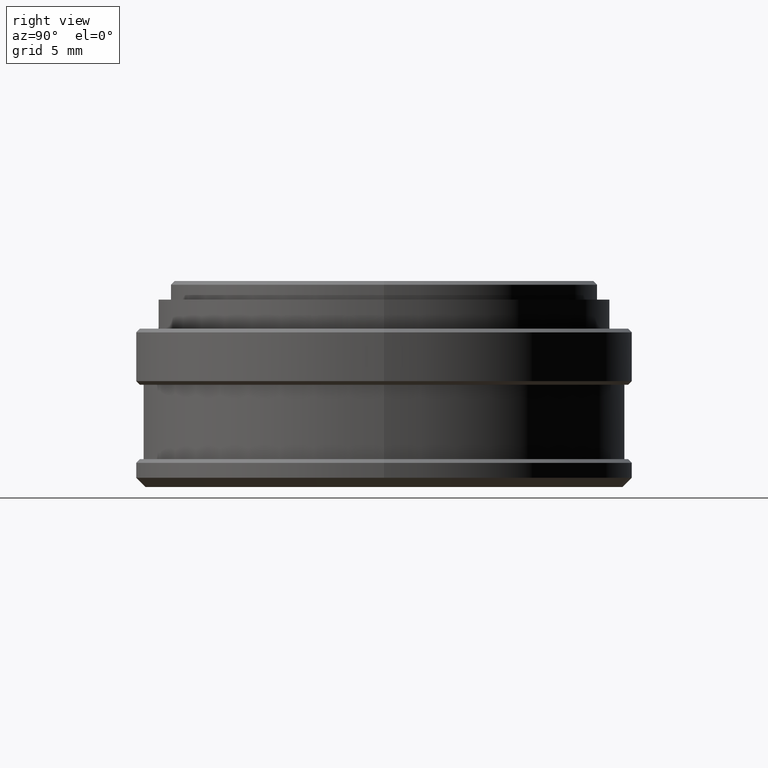
[diagram: clean part render]
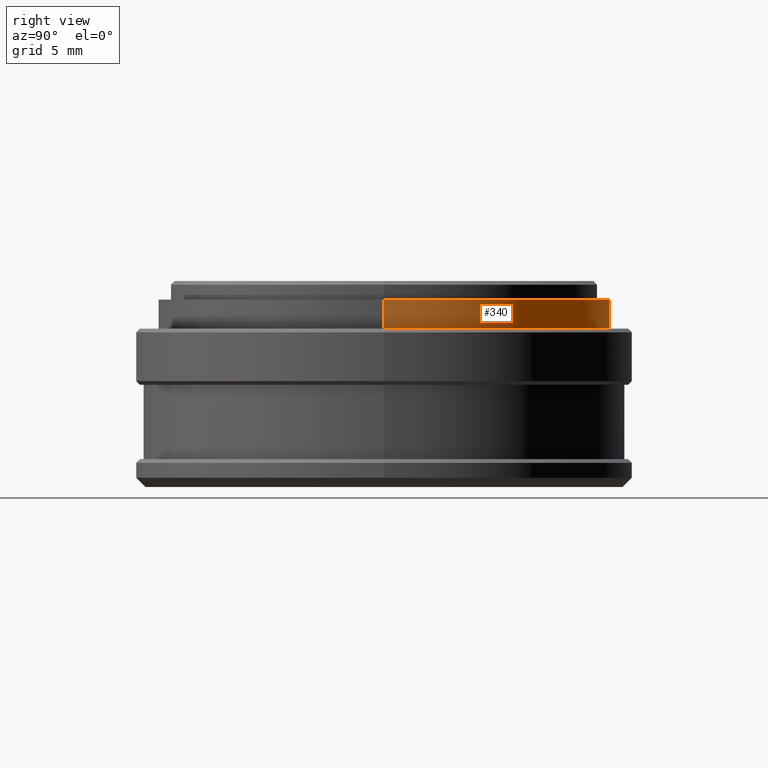
[diagram: same view with one face highlighted and labeled with its STEP entity id]
A machine part, right view. The second image highlights one B-rep face of the part: STEP entity #340.
In plain terms, the highlighted cylindrical surface (partial cylindrical patch) has radius 12.124 mm, axis along (-0, -0, -1).
Its self-contained STEP definition (entity closure, byte-faithful):
#20 = ORIENTED_EDGE ( 'NONE', *, *, #229, .F. ) ;
#27 = ORIENTED_EDGE ( 'NONE', *, *, #315, .F. ) ;
#148 = VERTEX_POINT ( 'NONE', #280 ) ;
#151 = CYLINDRICAL_SURFACE ( 'NONE', #524, 12.12400000000000200 ) ;
#207 = EDGE_LOOP ( 'NONE', ( #20, #306, #375, #27 ) ) ;
#220 = LINE ( 'NONE', #709, #260 ) ;
#229 = EDGE_CURVE ( 'NONE', #643, #623, #736, .T. ) ;
#233 = CIRCLE ( 'NONE', #475, 12.12400000000000200 ) ;
#260 = VECTOR ( 'NONE', #748, 1000.000000000000000 ) ;
#271 = EDGE_CURVE ( 'NONE', #313, #148, #233, .T. ) ;
#280 = CARTESIAN_POINT ( 'NONE',  ( -12.12400000000000200, 0.0000000000000000000, 8.519999999999999600 ) ) ;
#304 = EDGE_CURVE ( 'NONE', #643, #313, #316, .T. ) ;
#306 = ORIENTED_EDGE ( 'NONE', *, *, #304, .T. ) ;
#313 = VERTEX_POINT ( 'NONE', #679 ) ;
#315 = EDGE_CURVE ( 'NONE', #623, #148, #220, .T. ) ;
#316 = LINE ( 'NONE', #703, #388 ) ;
#340 = ADVANCED_FACE ( 'NONE', ( #722 ), #151, .T. ) ;
#375 = ORIENTED_EDGE ( 'NONE', *, *, #271, .T. ) ;
#388 = VECTOR ( 'NONE', #705, 1000.000000000000000 ) ;
#475 = AXIS2_PLACEMENT_3D ( 'NONE', #624, #629, #654 ) ;
#492 = AXIS2_PLACEMENT_3D ( 'NONE', #532, #554, #548 ) ;
#522 = CARTESIAN_POINT ( 'NONE',  ( 12.12400000000000200, 1.484761779286251400E-015, 10.08400000000000000 ) ) ;
#524 = AXIS2_PLACEMENT_3D ( 'NONE', #753, #747, #757 ) ;
#528 = CARTESIAN_POINT ( 'NONE',  ( -12.12400000000000200, 0.0000000000000000000, 10.08400000000000000 ) ) ;
#532 = CARTESIAN_POINT ( 'NONE',  ( 0.0000000000000000000, 0.0000000000000000000, 10.08400000000000000 ) ) ;
#548 = DIRECTION ( 'NONE',  ( 1.000000000000000000, 0.0000000000000000000, 0.0000000000000000000 ) ) ;
#554 = DIRECTION ( 'NONE',  ( 0.0000000000000000000, 0.0000000000000000000, 1.000000000000000000 ) ) ;
#623 = VERTEX_POINT ( 'NONE', #528 ) ;
#624 = CARTESIAN_POINT ( 'NONE',  ( 0.0000000000000000000, 0.0000000000000000000, 8.519999999999999600 ) ) ;
#629 = DIRECTION ( 'NONE',  ( 0.0000000000000000000, 0.0000000000000000000, 1.000000000000000000 ) ) ;
#643 = VERTEX_POINT ( 'NONE', #522 ) ;
#654 = DIRECTION ( 'NONE',  ( 1.000000000000000000, 0.0000000000000000000, 0.0000000000000000000 ) ) ;
#679 = CARTESIAN_POINT ( 'NONE',  ( 12.12400000000000200, 1.484761779286251400E-015, 8.519999999999999600 ) ) ;
#703 = CARTESIAN_POINT ( 'NONE',  ( 12.12400000000000200, 1.484761779286251400E-015, 10.08400000000000000 ) ) ;
#705 = DIRECTION ( 'NONE',  ( -0.0000000000000000000, -0.0000000000000000000, -1.000000000000000000 ) ) ;
#709 = CARTESIAN_POINT ( 'NONE',  ( -12.12400000000000200, 0.0000000000000000000, 10.08400000000000000 ) ) ;
#722 = FACE_OUTER_BOUND ( 'NONE', #207, .T. ) ;
#736 = CIRCLE ( 'NONE', #492, 12.12400000000000200 ) ;
#747 = DIRECTION ( 'NONE',  ( -0.0000000000000000000, -0.0000000000000000000, -1.000000000000000000 ) ) ;
#748 = DIRECTION ( 'NONE',  ( -0.0000000000000000000, -0.0000000000000000000, -1.000000000000000000 ) ) ;
#753 = CARTESIAN_POINT ( 'NONE',  ( 0.0000000000000000000, 0.0000000000000000000, 10.08400000000000000 ) ) ;
#757 = DIRECTION ( 'NONE',  ( -1.000000000000000000, 0.0000000000000000000, 0.0000000000000000000 ) ) ;